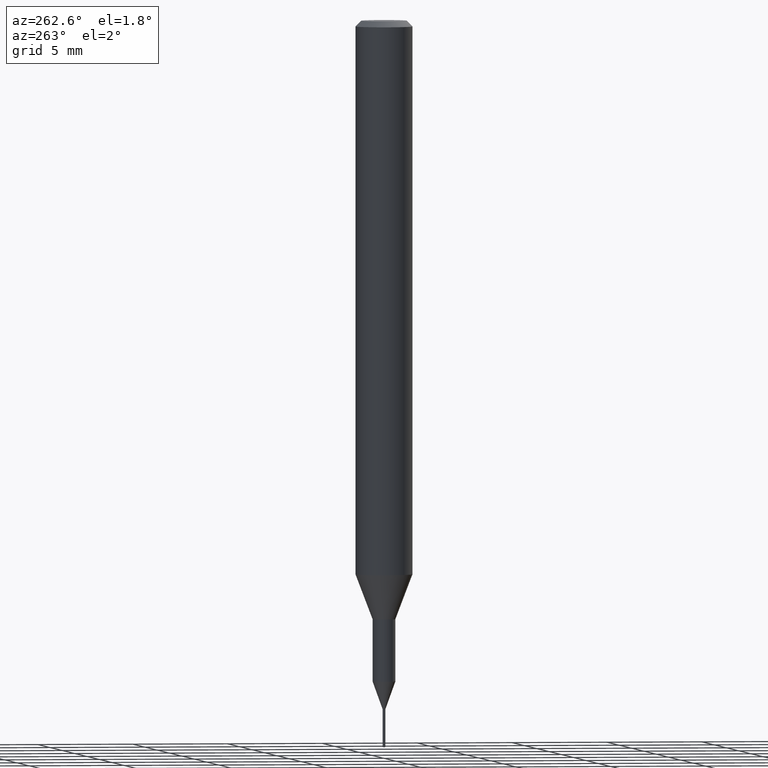
[diagram: clean part render]
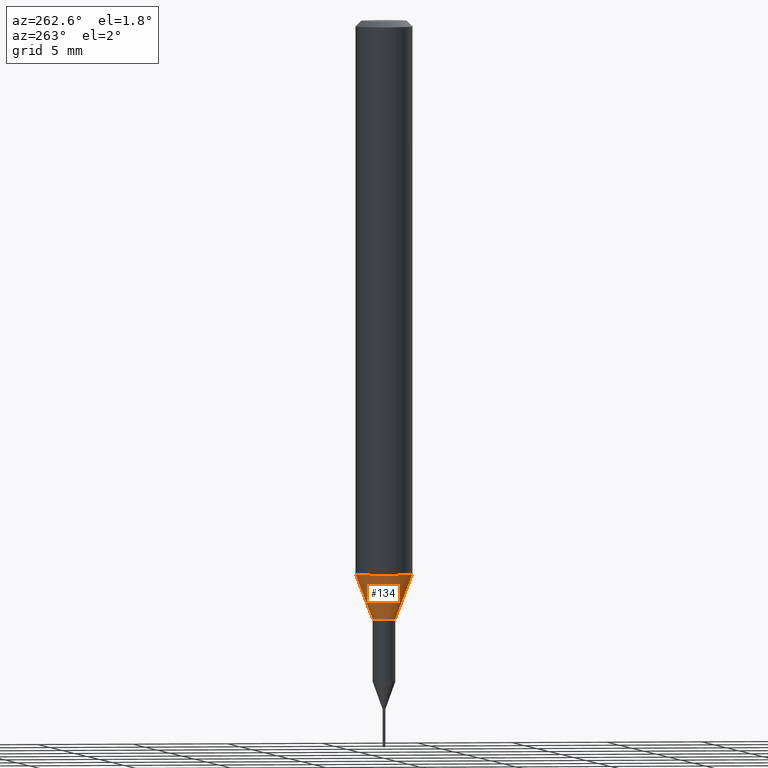
[diagram: same view with one face highlighted and labeled with its STEP entity id]
A machine part, auxiliary view. The second image highlights one B-rep face of the part: STEP entity #134.
In plain terms, the highlighted conical surface has half-angle 20.997 deg.
Its self-contained STEP definition (entity closure, byte-faithful):
#126=EDGE_CURVE('',#222,#184,#305,.T.);
#128=VERTEX_POINT('',#307);
#134=ADVANCED_FACE('',(#313),#314,.T.);
#138=EDGE_CURVE('',#180,#128,#319,.T.);
#180=VERTEX_POINT('',#365);
#184=VERTEX_POINT('',#369);
#188=EDGE_CURVE('',#222,#128,#374,.T.);
#216=EDGE_CURVE('',#184,#180,#409,.T.);
#222=VERTEX_POINT('',#415);
#305=LINE('',#501,#502);
#307=CARTESIAN_POINT('',(0.0,0.6,-31.3));
#313=FACE_OUTER_BOUND('',#511,.T.);
#314=CONICAL_SURFACE('',#512,1.05,0.366459241971866);
#319=LINE('',#518,#519);
#365=CARTESIAN_POINT('',(0.0,1.5,-28.955));
#369=CARTESIAN_POINT('',(1.83690953073357E-016,-1.5,-28.955));
#374=CIRCLE('',#590,0.6);
#409=CIRCLE('',#630,1.5);
#415=CARTESIAN_POINT('',(7.34763812293426E-017,-0.6,-31.3));
#501=CARTESIAN_POINT('',(1.2858366715135E-016,-1.05,-30.1275));
#502=VECTOR('',#734,1.0);
#511=EDGE_LOOP('',(#739,#740,#741,#742));
#512=AXIS2_PLACEMENT_3D('',#743,#744,#745);
#518=CARTESIAN_POINT('',(-1.2858366715135E-016,1.05,-30.1275));
#519=VECTOR('',#754,1.0);
#590=AXIS2_PLACEMENT_3D('',#804,#805,#806);
#630=AXIS2_PLACEMENT_3D('',#864,#865,#866);
#734=DIRECTION('',(4.38791184365088E-017,-0.358312026550805,0.93360189140182));
#739=ORIENTED_EDGE('',*,*,#138,.T.);
#740=ORIENTED_EDGE('',*,*,#188,.F.);
#741=ORIENTED_EDGE('',*,*,#126,.T.);
#742=ORIENTED_EDGE('',*,*,#216,.T.);
#743=CARTESIAN_POINT('',(0.0,0.0,-30.1275));
#744=DIRECTION('',(-0.0,-0.0,1.0));
#745=DIRECTION('',(0.0,1.0,0.0));
#754=DIRECTION('',(4.38791184365088E-017,-0.358312026550805,-0.93360189140182));
#804=CARTESIAN_POINT('',(0.0,0.0,-31.3));
#805=DIRECTION('',(0.0,0.0,-1.0));
#806=DIRECTION('',(0.0,1.0,0.0));
#864=CARTESIAN_POINT('',(0.0,0.0,-28.955));
#865=DIRECTION('',(0.0,0.0,-1.0));
#866=DIRECTION('',(0.0,1.0,0.0));